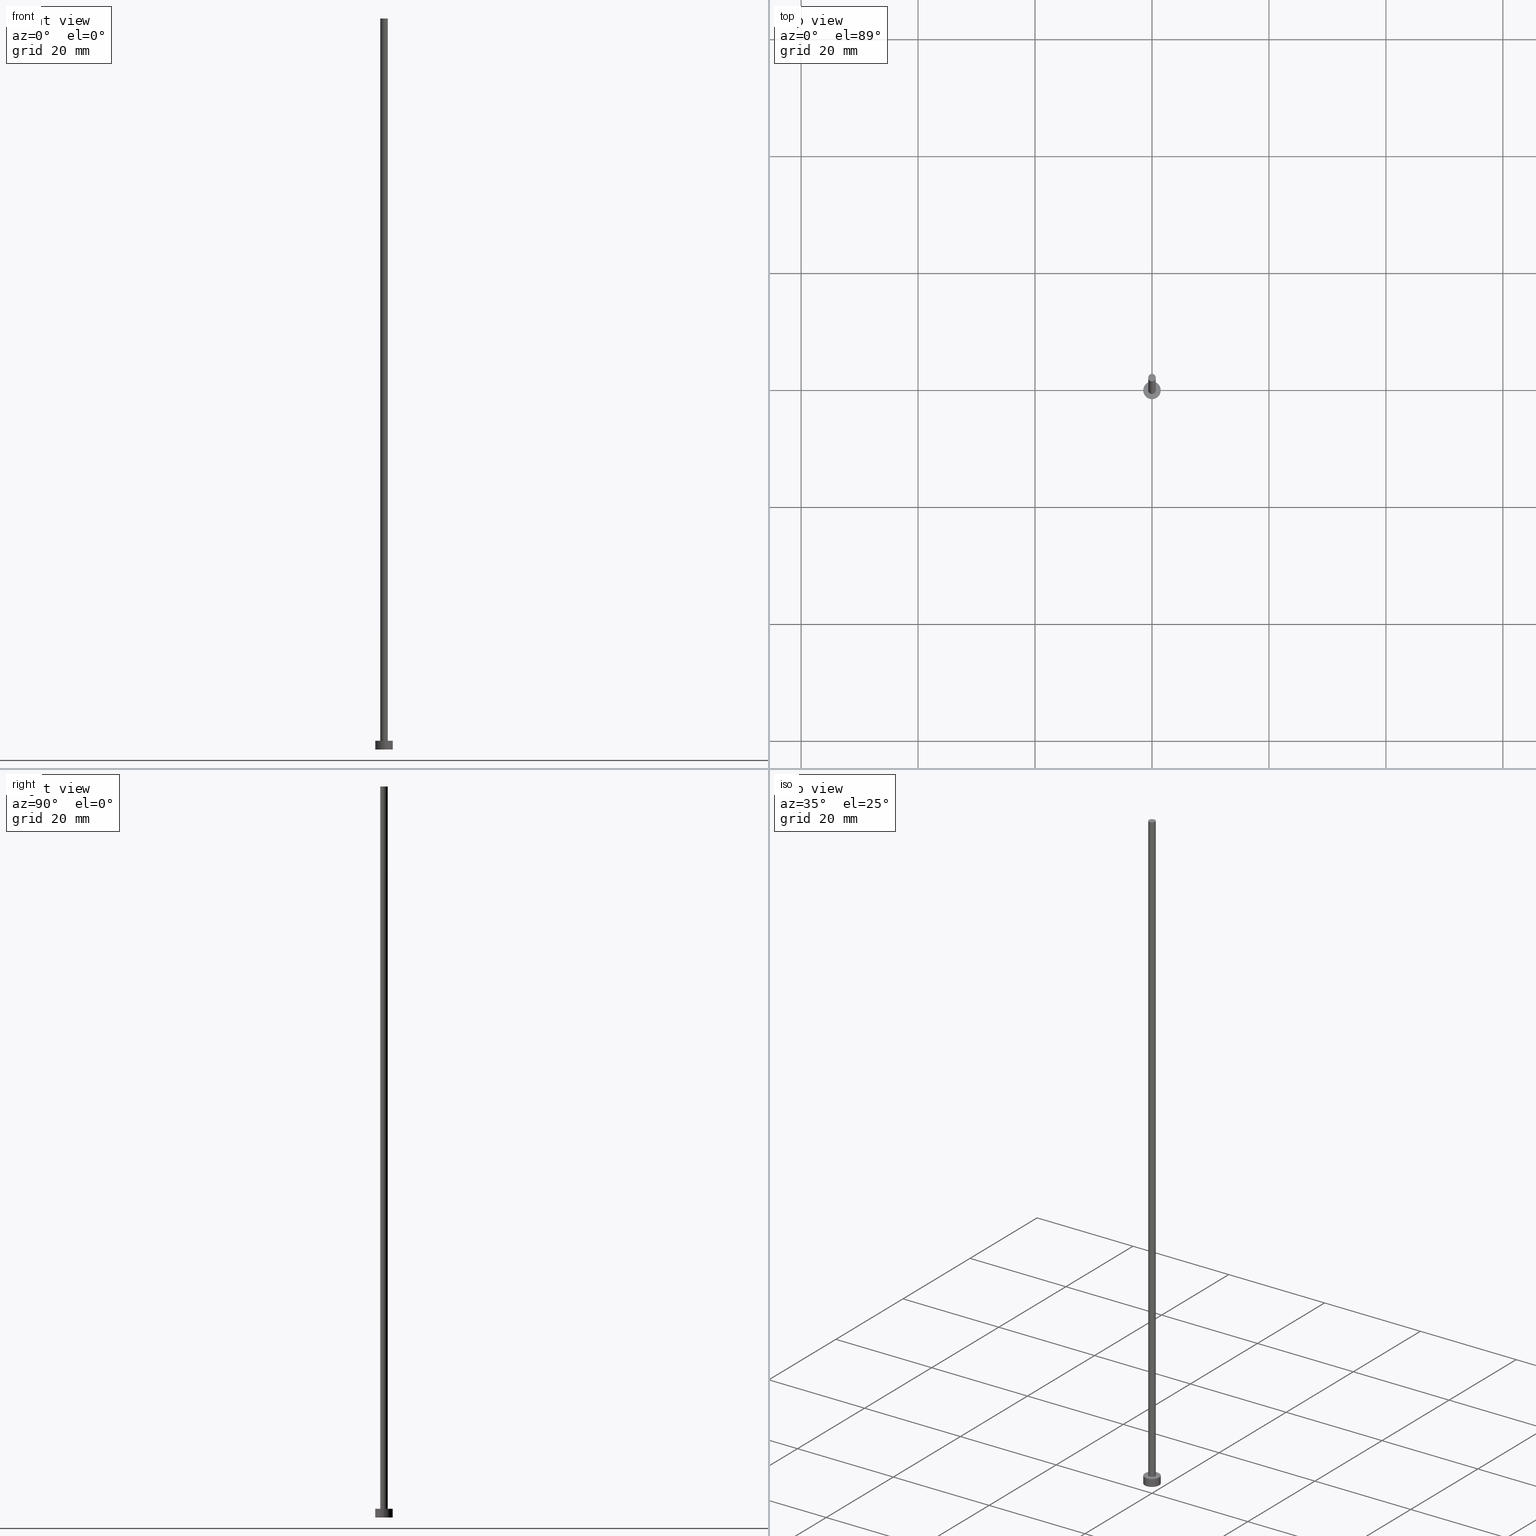
[diagram: canonical four-view strip — front | top / right | iso, engineering-drawing reading convention]
A machine part, canonical four-view strip (front | top / right | iso — engineering-drawing reading convention). The complete STEP part file that produces these views, byte-faithful:
ISO-10303-21;
HEADER;
FILE_DESCRIPTION (( 'STEP AP203' ),
    '1' );
FILE_NAME ('daf0.STEP',
    '2023-02-13T17:26:22',
    ( '' ),
    ( '' ),
    'SwSTEP 2.0',
    'SolidWorks 2019',
    '' );
FILE_SCHEMA (( 'CONFIG_CONTROL_DESIGN' ));
ENDSEC;

DATA;
#1 = CARTESIAN_POINT ( 'NONE',  ( 0.000000000000000000, 0.000000000000000000, 125.0000000000000000 ) ) ;
#2 = AXIS2_PLACEMENT_3D ( 'NONE', #20, #41, #117 ) ;
#3 = ORGANIZATION ( 'NEUR�EN�', 'NEUR�EN�', '' ) ;
#4 = FACE_OUTER_BOUND ( 'NONE', #73, .T. ) ;
#5 = DIRECTION ( 'NONE',  ( -0.000000000000000000, -0.000000000000000000, -1.000000000000000000 ) ) ;
#6 = CARTESIAN_POINT ( 'NONE',  ( 0.000000000000000000, 0.000000000000000000, 125.0000000000000000 ) ) ;
#7 = CARTESIAN_POINT ( 'NONE',  ( 1.500000000000000222, 1.836970198721030181E-16, 1.500000000000000000 ) ) ;
#8 = CARTESIAN_POINT ( 'NONE',  ( 0.000000000000000000, 0.000000000000000000, 1.500000000000000000 ) ) ;
#9 = CIRCLE ( 'NONE', #102, 1.500000000000000222 ) ;
#10 = CC_DESIGN_PERSON_AND_ORGANIZATION_ASSIGNMENT ( #202, #224, ( #19 ) ) ;
#11 = LINE ( 'NONE', #7, #163 ) ;
#12 = AXIS2_PLACEMENT_3D ( 'NONE', #8, #127, #103 ) ;
#13 = CARTESIAN_POINT ( 'NONE',  ( 1.500000000000000222, 1.836970198721030181E-16, 0.000000000000000000 ) ) ;
#14 = DATE_AND_TIME ( #226, #91 ) ;
#15 = COORDINATED_UNIVERSAL_TIME_OFFSET ( 1, 0, .AHEAD. ) ;
#16 = EDGE_LOOP ( 'NONE', ( #130, #95, #161, #251 ) ) ;
#17 = CARTESIAN_POINT ( 'NONE',  ( 0.000000000000000000, 0.000000000000000000, 125.0000000000000000 ) ) ;
#18 = ORIENTED_EDGE ( 'NONE', *, *, #250, .T. ) ;
#19 = PRODUCT ( 'daf0', 'daf0', '', ( #48 ) ) ;
#20 = CARTESIAN_POINT ( 'NONE',  ( 0.000000000000000000, 0.000000000000000000, 125.0000000000000000 ) ) ;
#21 = AXIS2_PLACEMENT_3D ( 'NONE', #239, #176, #98 ) ;
#22 = EDGE_CURVE ( 'NONE', #133, #39, #211, .T. ) ;
#23 = EDGE_LOOP ( 'NONE', ( #38, #138 ) ) ;
#24 = APPLICATION_CONTEXT ( 'configuration controlled 3d designs of mechanical parts and assemblies' ) ;
#25 = CARTESIAN_POINT ( 'NONE',  ( 0.6500000000000000222, 7.960204194457795477E-17, 1.500000000000000000 ) ) ;
#26 = DIRECTION ( 'NONE',  ( -1.000000000000000000, 0.000000000000000000, 0.000000000000000000 ) ) ;
#27 = APPROVAL ( #151, 'NEUR�EN�' ) ;
#28 = VECTOR ( 'NONE', #164, 1000.000000000000000 ) ;
#29 = CARTESIAN_POINT ( 'NONE',  ( 0.000000000000000000, 0.000000000000000000, 0.000000000000000000 ) ) ;
#30 = DIRECTION ( 'NONE',  ( -0.000000000000000000, -0.000000000000000000, -1.000000000000000000 ) ) ;
#31 = DIRECTION ( 'NONE',  ( 1.000000000000000000, 0.000000000000000000, -0.000000000000000000 ) ) ;
#32 = CC_DESIGN_APPROVAL ( #27, ( #204 ) ) ;
#33 = SHAPE_DEFINITION_REPRESENTATION ( #57, #254 ) ;
#34 = ADVANCED_FACE ( 'NONE', ( #4 ), #238, .T. ) ;
#35 = APPROVAL_STATUS ( 'not_yet_approved' ) ;
#36 = AXIS2_PLACEMENT_3D ( 'NONE', #99, #180, #44 ) ;
#37 = CALENDAR_DATE ( 2023, 13, 2 ) ;
#38 = ORIENTED_EDGE ( 'NONE', *, *, #68, .T. ) ;
#39 = VERTEX_POINT ( 'NONE', #241 ) ;
#40 = VECTOR ( 'NONE', #47, 1000.000000000000000 ) ;
#41 = DIRECTION ( 'NONE',  ( 0.000000000000000000, 0.000000000000000000, 1.000000000000000000 ) ) ;
#42 = ORIENTED_EDGE ( 'NONE', *, *, #184, .F. ) ;
#43 = ORIENTED_EDGE ( 'NONE', *, *, #71, .T. ) ;
#44 = DIRECTION ( 'NONE',  ( 1.000000000000000000, 0.000000000000000000, -0.000000000000000000 ) ) ;
#45 = ADVANCED_FACE ( 'NONE', ( #158, #191 ), #83, .T. ) ;
#46 = CARTESIAN_POINT ( 'NONE',  ( -0.6500000000000000222, 0.000000000000000000, 1.500000000000000000 ) ) ;
#47 = DIRECTION ( 'NONE',  ( -0.000000000000000000, -0.000000000000000000, -1.000000000000000000 ) ) ;
#48 = MECHANICAL_CONTEXT ( 'NONE', #120, 'mechanical' ) ;
#49 = SECURITY_CLASSIFICATION ( '', '', #189 ) ;
#50 = CYLINDRICAL_SURFACE ( 'NONE', #78, 1.500000000000000222 ) ;
#51 = ORIENTED_EDGE ( 'NONE', *, *, #150, .F. ) ;
#52 = APPROVAL_DATE_TIME ( #253, #27 ) ;
#53 = PERSON_AND_ORGANIZATION ( #218, #3 ) ;
#54 = AXIS2_PLACEMENT_3D ( 'NONE', #1, #81, #101 ) ;
#55 = EDGE_CURVE ( 'NONE', #118, #79, #197, .T. ) ;
#56 = PERSON_AND_ORGANIZATION ( #218, #3 ) ;
#57 = PRODUCT_DEFINITION_SHAPE ( 'NONE', 'NONE',  #59 ) ;
#58 = EDGE_LOOP ( 'NONE', ( #155, #84, #93, #119 ) ) ;
#59 = PRODUCT_DEFINITION ( 'NEZN�M�', '', #204, #104 ) ;
#60 = DIRECTION ( 'NONE',  ( 0.000000000000000000, 0.000000000000000000, 1.000000000000000000 ) ) ;
#61 = ORIENTED_EDGE ( 'NONE', *, *, #169, .F. ) ;
#62 = CARTESIAN_POINT ( 'NONE',  ( 0.000000000000000000, 0.000000000000000000, 1.500000000000000000 ) ) ;
#63 = CC_DESIGN_DATE_AND_TIME_ASSIGNMENT ( #232, #233, ( #59 ) ) ;
#64 = ORIENTED_EDGE ( 'NONE', *, *, #229, .T. ) ;
#65 = CARTESIAN_POINT ( 'NONE',  ( -0.6500000000000000222, 0.000000000000000000, 125.0000000000000000 ) ) ;
#66 =( NAMED_UNIT ( * ) SI_UNIT ( $, .STERADIAN. ) SOLID_ANGLE_UNIT ( ) );
#67 = CARTESIAN_POINT ( 'NONE',  ( -0.6500000000000000222, 0.000000000000000000, 125.0000000000000000 ) ) ;
#68 = EDGE_CURVE ( 'NONE', #114, #160, #157, .T. ) ;
#69 = LINE ( 'NONE', #243, #40 ) ;
#70 = DIRECTION ( 'NONE',  ( 0.000000000000000000, 0.000000000000000000, 1.000000000000000000 ) ) ;
#71 = EDGE_CURVE ( 'NONE', #236, #140, #168, .T. ) ;
#72 = PERSON_AND_ORGANIZATION_ROLE ( 'classification_officer' ) ;
#73 = EDGE_LOOP ( 'NONE', ( #136, #156, #249, #64 ) ) ;
#74 = DATE_AND_TIME ( #173, #186 ) ;
#75 = ORIENTED_EDGE ( 'NONE', *, *, #22, .T. ) ;
#76 = PERSON_AND_ORGANIZATION ( #218, #3 ) ;
#77 = PRODUCT_RELATED_PRODUCT_CATEGORY ( 'detail', '', ( #19 ) ) ;
#78 = AXIS2_PLACEMENT_3D ( 'NONE', #185, #30, #26 ) ;
#79 = VERTEX_POINT ( 'NONE', #25 ) ;
#80 = CC_DESIGN_PERSON_AND_ORGANIZATION_ASSIGNMENT ( #76, #153, ( #204 ) ) ;
#81 = DIRECTION ( 'NONE',  ( 0.000000000000000000, 0.000000000000000000, 1.000000000000000000 ) ) ;
#82 = AXIS2_PLACEMENT_3D ( 'NONE', #29, #247, #31 ) ;
#83 = PLANE ( 'NONE',  #137 ) ;
#84 = ORIENTED_EDGE ( 'NONE', *, *, #71, .F. ) ;
#85 = FACE_OUTER_BOUND ( 'NONE', #16, .T. ) ;
#86 = CLOSED_SHELL ( 'NONE', ( #124, #201, #34, #45, #159, #115, #106 ) ) ;
#87 = LOCAL_TIME ( 18, 26, 22.00000000000000000, #206 ) ;
#88 = DIRECTION ( 'NONE',  ( -0.000000000000000000, -0.000000000000000000, -1.000000000000000000 ) ) ;
#89 =( NAMED_UNIT ( * ) PLANE_ANGLE_UNIT ( ) SI_UNIT ( $, .RADIAN. ) );
#90 = CC_DESIGN_PERSON_AND_ORGANIZATION_ASSIGNMENT ( #94, #205, ( #59 ) ) ;
#91 = LOCAL_TIME ( 18, 26, 22.00000000000000000, #15 ) ;
#92 = CC_DESIGN_PERSON_AND_ORGANIZATION_ASSIGNMENT ( #56, #72, ( #49 ) ) ;
#93 = ORIENTED_EDGE ( 'NONE', *, *, #215, .T. ) ;
#94 = PERSON_AND_ORGANIZATION ( #218, #3 ) ;
#95 = ORIENTED_EDGE ( 'NONE', *, *, #174, .T. ) ;
#96 = APPROVAL_PERSON_ORGANIZATION ( #149, #235, #210 ) ;
#97 = ORIENTED_EDGE ( 'NONE', *, *, #112, .T. ) ;
#98 = DIRECTION ( 'NONE',  ( -1.000000000000000000, 0.000000000000000000, 0.000000000000000000 ) ) ;
#99 = CARTESIAN_POINT ( 'NONE',  ( 0.000000000000000000, 0.000000000000000000, 125.0000000000000000 ) ) ;
#100 = FACE_OUTER_BOUND ( 'NONE', #58, .T. ) ;
#101 = DIRECTION ( 'NONE',  ( 1.000000000000000000, 0.000000000000000000, 0.000000000000000000 ) ) ;
#102 = AXIS2_PLACEMENT_3D ( 'NONE', #245, #166, #223 ) ;
#103 = DIRECTION ( 'NONE',  ( 1.000000000000000000, 0.000000000000000000, 0.000000000000000000 ) ) ;
#104 = DESIGN_CONTEXT ( 'detailed design', #24, 'design' ) ;
#105 = LINE ( 'NONE', #170, #28 ) ;
#106 = ADVANCED_FACE ( 'NONE', ( #193 ), #216, .T. ) ;
#107 = DIRECTION ( 'NONE',  ( -0.000000000000000000, -0.000000000000000000, -1.000000000000000000 ) ) ;
#108 = APPROVAL_DATE_TIME ( #208, #235 ) ;
#109 = CALENDAR_DATE ( 2023, 13, 2 ) ;
#110 = AXIS2_PLACEMENT_3D ( 'NONE', #177, #143, #213 ) ;
#111 = COORDINATED_UNIVERSAL_TIME_OFFSET ( 1, 0, .AHEAD. ) ;
#112 = EDGE_CURVE ( 'NONE', #140, #236, #131, .T. ) ;
#113 = APPROVAL_ROLE ( '' ) ;
#114 = VERTEX_POINT ( 'NONE', #178 ) ;
#115 = ADVANCED_FACE ( 'NONE', ( #100 ), #179, .T. ) ;
#116 = EDGE_LOOP ( 'NONE', ( #214, #162 ) ) ;
#117 = DIRECTION ( 'NONE',  ( 1.000000000000000000, 0.000000000000000000, 0.000000000000000000 ) ) ;
#118 = VERTEX_POINT ( 'NONE', #46 ) ;
#119 = ORIENTED_EDGE ( 'NONE', *, *, #55, .T. ) ;
#120 = APPLICATION_CONTEXT ( 'configuration controlled 3d designs of mechanical parts and assemblies' ) ;
#121 = DIRECTION ( 'NONE',  ( 1.000000000000000000, 0.000000000000000000, 0.000000000000000000 ) ) ;
#122 = CYLINDRICAL_SURFACE ( 'NONE', #152, 0.6500000000000000222 ) ;
#123 = DIRECTION ( 'NONE',  ( -0.000000000000000000, -0.000000000000000000, -1.000000000000000000 ) ) ;
#124 = ADVANCED_FACE ( 'NONE', ( #85 ), #122, .T. ) ;
#125 = CARTESIAN_POINT ( 'NONE',  ( 1.500000000000000222, 1.836970198721030181E-16, 1.500000000000000000 ) ) ;
#126 = FACE_OUTER_BOUND ( 'NONE', #116, .T. ) ;
#127 = DIRECTION ( 'NONE',  ( 0.000000000000000000, 0.000000000000000000, 1.000000000000000000 ) ) ;
#128 = PERSON_AND_ORGANIZATION ( #218, #3 ) ;
#129 = AXIS2_PLACEMENT_3D ( 'NONE', #148, #222, #145 ) ;
#130 = ORIENTED_EDGE ( 'NONE', *, *, #112, .F. ) ;
#131 = CIRCLE ( 'NONE', #54, 0.6500000000000000222 ) ;
#132 = COORDINATED_UNIVERSAL_TIME_OFFSET ( 1, 0, .AHEAD. ) ;
#133 = VERTEX_POINT ( 'NONE', #13 ) ;
#134 = CC_DESIGN_APPROVAL ( #235, ( #49 ) ) ;
#135 = DATE_TIME_ROLE ( 'classification_date' ) ;
#136 = ORIENTED_EDGE ( 'NONE', *, *, #250, .F. ) ;
#137 = AXIS2_PLACEMENT_3D ( 'NONE', #62, #219, #141 ) ;
#138 = ORIENTED_EDGE ( 'NONE', *, *, #150, .T. ) ;
#139 = CIRCLE ( 'NONE', #12, 0.6500000000000000222 ) ;
#140 = VERTEX_POINT ( 'NONE', #220 ) ;
#141 = DIRECTION ( 'NONE',  ( 1.000000000000000000, 0.000000000000000000, -0.000000000000000000 ) ) ;
#142 = AXIS2_PLACEMENT_3D ( 'NONE', #195, #60, #255 ) ;
#143 = DIRECTION ( 'NONE',  ( 0.000000000000000000, 0.000000000000000000, 1.000000000000000000 ) ) ;
#144 = DIRECTION ( 'NONE',  ( 0.000000000000000000, 0.000000000000000000, 1.000000000000000000 ) ) ;
#145 = DIRECTION ( 'NONE',  ( 1.000000000000000000, 0.000000000000000000, 0.000000000000000000 ) ) ;
#146 = CC_DESIGN_SECURITY_CLASSIFICATION ( #49, ( #204 ) ) ;
#147 = LINE ( 'NONE', #67, #172 ) ;
#148 = CARTESIAN_POINT ( 'NONE',  ( 0.000000000000000000, 0.000000000000000000, 0.000000000000000000 ) ) ;
#149 = PERSON_AND_ORGANIZATION ( #218, #3 ) ;
#150 = EDGE_CURVE ( 'NONE', #160, #114, #9, .T. ) ;
#151 = APPROVAL_STATUS ( 'not_yet_approved' ) ;
#152 = AXIS2_PLACEMENT_3D ( 'NONE', #17, #123, #167 ) ;
#153 = PERSON_AND_ORGANIZATION_ROLE ( 'design_supplier' ) ;
#154 = AXIS2_PLACEMENT_3D ( 'NONE', #200, #70, #198 ) ;
#155 = ORIENTED_EDGE ( 'NONE', *, *, #174, .F. ) ;
#156 = ORIENTED_EDGE ( 'NONE', *, *, #68, .F. ) ;
#157 = CIRCLE ( 'NONE', #110, 1.500000000000000222 ) ;
#158 = FACE_BOUND ( 'NONE', #171, .T. ) ;
#159 = ADVANCED_FACE ( 'NONE', ( #126 ), #183, .F. ) ;
#160 = VERTEX_POINT ( 'NONE', #125 ) ;
#161 = ORIENTED_EDGE ( 'NONE', *, *, #169, .T. ) ;
#162 = ORIENTED_EDGE ( 'NONE', *, *, #22, .F. ) ;
#163 = VECTOR ( 'NONE', #88, 1000.000000000000000 ) ;
#164 = DIRECTION ( 'NONE',  ( -0.000000000000000000, -0.000000000000000000, -1.000000000000000000 ) ) ;
#165 = UNCERTAINTY_MEASURE_WITH_UNIT (LENGTH_MEASURE( 1.000000000000000082E-05 ), #203, 'distance_accuracy_value', 'NONE');
#166 = DIRECTION ( 'NONE',  ( 0.000000000000000000, 0.000000000000000000, 1.000000000000000000 ) ) ;
#167 = DIRECTION ( 'NONE',  ( -1.000000000000000000, 0.000000000000000000, 0.000000000000000000 ) ) ;
#168 = CIRCLE ( 'NONE', #2, 0.6500000000000000222 ) ;
#169 = EDGE_CURVE ( 'NONE', #79, #118, #139, .T. ) ;
#170 = CARTESIAN_POINT ( 'NONE',  ( -1.500000000000000222, 0.000000000000000000, 1.500000000000000000 ) ) ;
#171 = EDGE_LOOP ( 'NONE', ( #230, #61 ) ) ;
#172 = VECTOR ( 'NONE', #107, 1000.000000000000000 ) ;
#173 = CALENDAR_DATE ( 2023, 13, 2 ) ;
#174 = EDGE_CURVE ( 'NONE', #140, #79, #69, .T. ) ;
#175 =( GEOMETRIC_REPRESENTATION_CONTEXT ( 3 ) GLOBAL_UNCERTAINTY_ASSIGNED_CONTEXT ( ( #165 ) ) GLOBAL_UNIT_ASSIGNED_CONTEXT ( ( #203, #89, #66 ) ) REPRESENTATION_CONTEXT ( 'NONE', 'WORKASPACE' ) );
#176 = DIRECTION ( 'NONE',  ( -0.000000000000000000, -0.000000000000000000, -1.000000000000000000 ) ) ;
#177 = CARTESIAN_POINT ( 'NONE',  ( 0.000000000000000000, 0.000000000000000000, 1.500000000000000000 ) ) ;
#178 = CARTESIAN_POINT ( 'NONE',  ( -1.500000000000000222, 0.000000000000000000, 1.500000000000000000 ) ) ;
#179 = CYLINDRICAL_SURFACE ( 'NONE', #231, 0.6500000000000000222 ) ;
#180 = DIRECTION ( 'NONE',  ( 0.000000000000000000, 0.000000000000000000, 1.000000000000000000 ) ) ;
#181 = APPLICATION_PROTOCOL_DEFINITION ( 'international standard', 'config_control_design', 1994, #24 ) ;
#182 = APPLICATION_PROTOCOL_DEFINITION ( 'international standard', 'config_control_design', 1994, #120 ) ;
#183 = PLANE ( 'NONE',  #82 ) ;
#184 = EDGE_CURVE ( 'NONE', #114, #39, #105, .T. ) ;
#185 = CARTESIAN_POINT ( 'NONE',  ( 0.000000000000000000, 0.000000000000000000, 1.500000000000000000 ) ) ;
#186 = LOCAL_TIME ( 18, 26, 22.00000000000000000, #111 ) ;
#187 = CALENDAR_DATE ( 2023, 13, 2 ) ;
#188 = APPROVAL_ROLE ( '' ) ;
#189 = SECURITY_CLASSIFICATION_LEVEL ( 'unclassified' ) ;
#190 = APPROVAL_PERSON_ORGANIZATION ( #128, #221, #113 ) ;
#191 = FACE_OUTER_BOUND ( 'NONE', #23, .T. ) ;
#192 = CARTESIAN_POINT ( 'NONE',  ( 0.000000000000000000, 0.000000000000000000, 0.000000000000000000 ) ) ;
#193 = FACE_OUTER_BOUND ( 'NONE', #212, .T. ) ;
#194 = CC_DESIGN_DATE_AND_TIME_ASSIGNMENT ( #14, #135, ( #49 ) ) ;
#195 = CARTESIAN_POINT ( 'NONE',  ( 0.000000000000000000, 0.000000000000000000, 1.500000000000000000 ) ) ;
#196 = FACE_OUTER_BOUND ( 'NONE', #234, .T. ) ;
#197 = CIRCLE ( 'NONE', #142, 0.6500000000000000222 ) ;
#198 = DIRECTION ( 'NONE',  ( 1.000000000000000000, 0.000000000000000000, 0.000000000000000000 ) ) ;
#199 = APPROVAL_PERSON_ORGANIZATION ( #53, #27, #188 ) ;
#200 = CARTESIAN_POINT ( 'NONE',  ( 0.000000000000000000, 0.000000000000000000, 0.000000000000000000 ) ) ;
#201 = ADVANCED_FACE ( 'NONE', ( #196 ), #50, .T. ) ;
#202 = PERSON_AND_ORGANIZATION ( #218, #3 ) ;
#203 =( LENGTH_UNIT ( ) NAMED_UNIT ( * ) SI_UNIT ( .MILLI., .METRE. ) );
#204 = PRODUCT_DEFINITION_FORMATION_WITH_SPECIFIED_SOURCE ( 'LIBOVOLN�', '', #19, .NOT_KNOWN. ) ;
#205 = PERSON_AND_ORGANIZATION_ROLE ( 'creator' ) ;
#206 = COORDINATED_UNIVERSAL_TIME_OFFSET ( 1, 0, .AHEAD. ) ;
#207 = PERSON_AND_ORGANIZATION_ROLE ( 'creator' ) ;
#208 = DATE_AND_TIME ( #187, #242 ) ;
#209 = CC_DESIGN_PERSON_AND_ORGANIZATION_ASSIGNMENT ( #248, #207, ( #204 ) ) ;
#210 = APPROVAL_ROLE ( '' ) ;
#211 = CIRCLE ( 'NONE', #225, 1.500000000000000222 ) ;
#212 = EDGE_LOOP ( 'NONE', ( #43, #97 ) ) ;
#213 = DIRECTION ( 'NONE',  ( 1.000000000000000000, 0.000000000000000000, 0.000000000000000000 ) ) ;
#214 = ORIENTED_EDGE ( 'NONE', *, *, #229, .F. ) ;
#215 = EDGE_CURVE ( 'NONE', #236, #118, #147, .T. ) ;
#216 = PLANE ( 'NONE',  #36 ) ;
#217 = CIRCLE ( 'NONE', #154, 1.500000000000000222 ) ;
#218 = PERSON ( 'NEUR�EN�', 'NEUR�EN�', 'NEUR�EN�', ('NEUR�EN�'), ('NEUR�EN�'), ('NEUR�EN�') ) ;
#219 = DIRECTION ( 'NONE',  ( 0.000000000000000000, 0.000000000000000000, 1.000000000000000000 ) ) ;
#220 = CARTESIAN_POINT ( 'NONE',  ( 0.6500000000000000222, 7.960204194457795477E-17, 125.0000000000000000 ) ) ;
#221 = APPROVAL ( #227, 'NEUR�EN�' ) ;
#222 = DIRECTION ( 'NONE',  ( 0.000000000000000000, 0.000000000000000000, 1.000000000000000000 ) ) ;
#223 = DIRECTION ( 'NONE',  ( 1.000000000000000000, 0.000000000000000000, 0.000000000000000000 ) ) ;
#224 = PERSON_AND_ORGANIZATION_ROLE ( 'design_owner' ) ;
#225 = AXIS2_PLACEMENT_3D ( 'NONE', #192, #144, #121 ) ;
#226 = CALENDAR_DATE ( 2023, 13, 2 ) ;
#227 = APPROVAL_STATUS ( 'not_yet_approved' ) ;
#228 = COORDINATED_UNIVERSAL_TIME_OFFSET ( 1, 0, .AHEAD. ) ;
#229 = EDGE_CURVE ( 'NONE', #39, #133, #217, .T. ) ;
#230 = ORIENTED_EDGE ( 'NONE', *, *, #55, .F. ) ;
#231 = AXIS2_PLACEMENT_3D ( 'NONE', #6, #5, #240 ) ;
#232 = DATE_AND_TIME ( #109, #87 ) ;
#233 = DATE_TIME_ROLE ( 'creation_date' ) ;
#234 = EDGE_LOOP ( 'NONE', ( #51, #18, #75, #42 ) ) ;
#235 = APPROVAL ( #35, 'NEUR�EN�' ) ;
#236 = VERTEX_POINT ( 'NONE', #65 ) ;
#237 = CC_DESIGN_APPROVAL ( #221, ( #59 ) ) ;
#238 = CYLINDRICAL_SURFACE ( 'NONE', #21, 1.500000000000000222 ) ;
#239 = CARTESIAN_POINT ( 'NONE',  ( 0.000000000000000000, 0.000000000000000000, 1.500000000000000000 ) ) ;
#240 = DIRECTION ( 'NONE',  ( -1.000000000000000000, 0.000000000000000000, 0.000000000000000000 ) ) ;
#241 = CARTESIAN_POINT ( 'NONE',  ( -1.500000000000000222, 0.000000000000000000, 0.000000000000000000 ) ) ;
#242 = LOCAL_TIME ( 18, 26, 22.00000000000000000, #132 ) ;
#243 = CARTESIAN_POINT ( 'NONE',  ( 0.6500000000000000222, 7.960204194457795477E-17, 125.0000000000000000 ) ) ;
#244 = MANIFOLD_SOLID_BREP ( 'P�idat vysunut�m3', #86 ) ;
#245 = CARTESIAN_POINT ( 'NONE',  ( 0.000000000000000000, 0.000000000000000000, 1.500000000000000000 ) ) ;
#246 = LOCAL_TIME ( 18, 26, 22.00000000000000000, #228 ) ;
#247 = DIRECTION ( 'NONE',  ( 0.000000000000000000, 0.000000000000000000, 1.000000000000000000 ) ) ;
#248 = PERSON_AND_ORGANIZATION ( #218, #3 ) ;
#249 = ORIENTED_EDGE ( 'NONE', *, *, #184, .T. ) ;
#250 = EDGE_CURVE ( 'NONE', #160, #133, #11, .T. ) ;
#251 = ORIENTED_EDGE ( 'NONE', *, *, #215, .F. ) ;
#252 = APPROVAL_DATE_TIME ( #74, #221 ) ;
#253 = DATE_AND_TIME ( #37, #246 ) ;
#254 = ADVANCED_BREP_SHAPE_REPRESENTATION ( 'daf0', ( #244, #129 ), #175 ) ;
#255 = DIRECTION ( 'NONE',  ( 1.000000000000000000, 0.000000000000000000, 0.000000000000000000 ) ) ;
ENDSEC;
END-ISO-10303-21;
